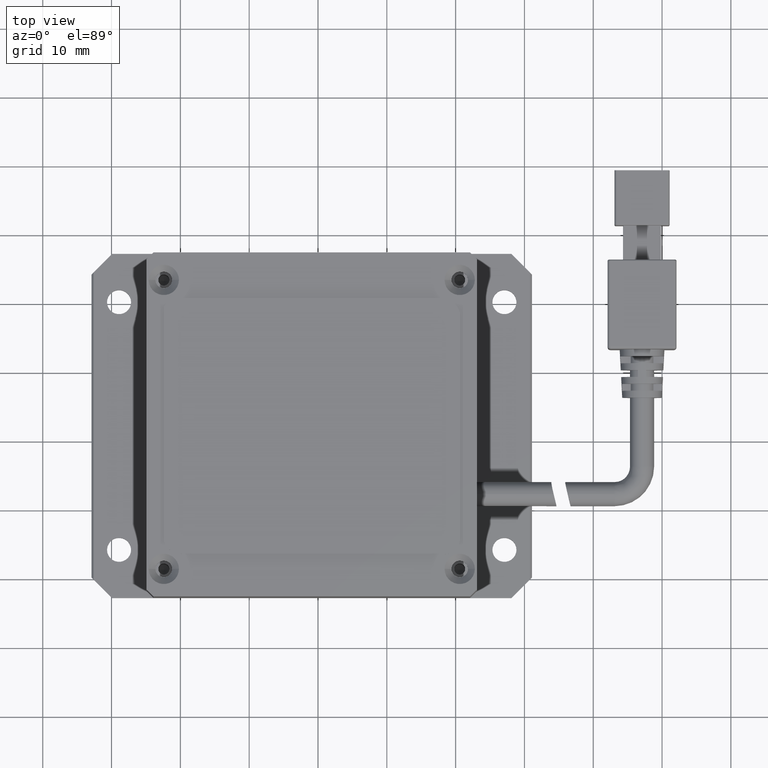
[diagram: clean part render]
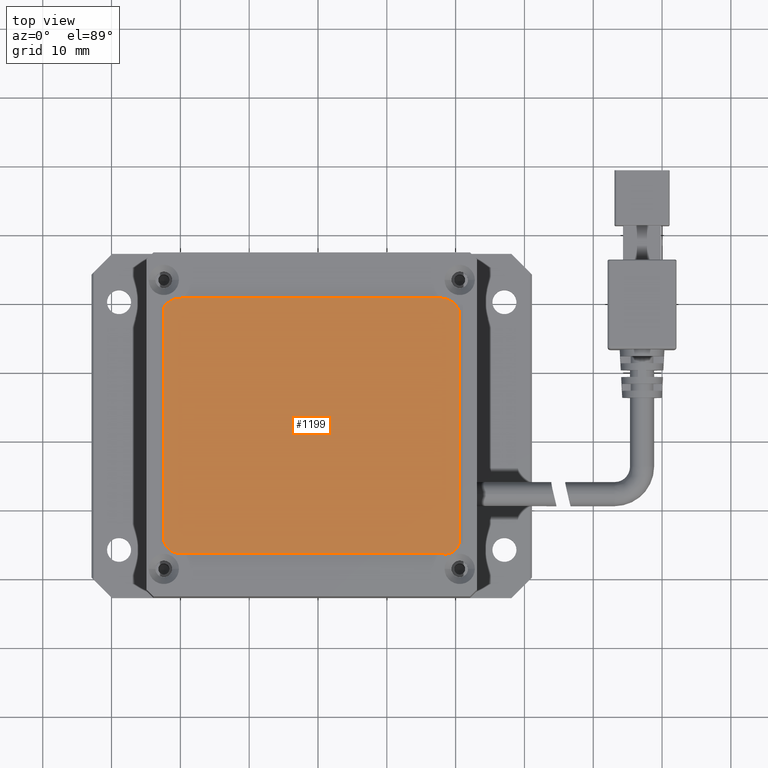
[diagram: same view with one face highlighted and labeled with its STEP entity id]
A machine part, top view. The second image highlights one B-rep face of the part: STEP entity #1199.
In plain terms, the highlighted planar face has unit normal (-0, 0, -1).
Its self-contained STEP definition (entity closure, byte-faithful):
#151 = ORIENTED_EDGE ( 'NONE', *, *, #2411, .T. ) ;
#592 = DIRECTION ( 'NONE',  ( 0.0000000000000000000, 1.000000000000000000, 0.0000000000000000000 ) ) ;
#1114 = VECTOR ( 'NONE', #5251, 1000.000000000000000 ) ;
#1199 = ADVANCED_FACE ( 'NONE', ( #19870 ), #18175, .F. ) ;
#1246 = CARTESIAN_POINT ( 'NONE',  ( -19.88397062032537500, 20.64631015631383800, 13.09999999998369100 ) ) ;
#1491 = VERTEX_POINT ( 'NONE', #4927 ) ;
#1535 = VERTEX_POINT ( 'NONE', #16040 ) ;
#1607 = VERTEX_POINT ( 'NONE', #16639 ) ;
#1836 = ORIENTED_EDGE ( 'NONE', *, *, #14850, .T. ) ;
#2411 = EDGE_CURVE ( 'NONE', #1491, #4511, #7605, .T. ) ;
#2452 = CARTESIAN_POINT ( 'NONE',  ( 20.59316533027872600, -14.67035368407021800, 13.09999999998369100 ) ) ;
#2702 = AXIS2_PLACEMENT_3D ( 'NONE', #5069, #16121, #6660 ) ;
#2831 = LINE ( 'NONE', #10070, #11757 ) ;
#2909 = DIRECTION ( 'NONE',  ( -1.000000000000000000, -0.0000000000000000000, -0.0000000000000000000 ) ) ;
#3595 = CARTESIAN_POINT ( 'NONE',  ( -19.88397062032537500, -13.87193816601501000, 13.09999999998369100 ) ) ;
#3610 = AXIS2_PLACEMENT_3D ( 'NONE', #4335, #15413, #5922 ) ;
#3613 = EDGE_CURVE ( 'NONE', #15785, #4693, #15423, .T. ) ;
#4335 = CARTESIAN_POINT ( 'NONE',  ( 18.45703195761590700, -14.40474704532020500, 13.09999999998369100 ) ) ;
#4497 = DIRECTION ( 'NONE',  ( 0.0000000000000000000, 0.0000000000000000000, 1.000000000000000000 ) ) ;
#4511 = VERTEX_POINT ( 'NONE', #2452 ) ;
#4693 = VERTEX_POINT ( 'NONE', #13863 ) ;
#4927 = CARTESIAN_POINT ( 'NONE',  ( 18.00368343727945900, -16.50904925542707200, 13.09999999998369100 ) ) ;
#5069 = CARTESIAN_POINT ( 'NONE',  ( -19.94927597337307600, 17.62137133524542800, 13.09999999998369100 ) ) ;
#5196 = DIRECTION ( 'NONE',  ( -1.000000000000000000, 0.0000000000000000000, 0.0000000000000000000 ) ) ;
#5251 = DIRECTION ( 'NONE',  ( -0.0000000000000000000, -1.000000000000000000, -0.0000000000000000000 ) ) ;
#5606 = CARTESIAN_POINT ( 'NONE',  ( -19.94927597337307600, 17.62137133524542800, 13.09999999998369100 ) ) ;
#5779 = EDGE_CURVE ( 'NONE', #6133, #1607, #16197, .T. ) ;
#5922 = DIRECTION ( 'NONE',  ( 1.000000000000000000, 0.0000000000000000000, 0.0000000000000000000 ) ) ;
#6133 = VERTEX_POINT ( 'NONE', #8478 ) ;
#6660 = DIRECTION ( 'NONE',  ( -1.000000000000000000, 0.0000000000000000000, 0.0000000000000000000 ) ) ;
#6936 = DIRECTION ( 'NONE',  ( 1.000000000000000000, 0.0000000000000000000, 0.0000000000000000000 ) ) ;
#6982 = LINE ( 'NONE', #1246, #19093 ) ;
#7019 = AXIS2_PLACEMENT_3D ( 'NONE', #13960, #4497, #15573 ) ;
#7100 = VECTOR ( 'NONE', #6936, 1000.000000000000000 ) ;
#7171 = EDGE_LOOP ( 'NONE', ( #13067, #1836, #17653, #9220, #151, #16431, #14018, #20126 ) ) ;
#7221 = DIRECTION ( 'NONE',  ( -1.000000000000000000, 0.0000000000000000000, 0.0000000000000000000 ) ) ;
#7605 = CIRCLE ( 'NONE', #3610, 2.152582791056338400 ) ;
#7622 = AXIS2_PLACEMENT_3D ( 'NONE', #5606, #16664, #7221 ) ;
#8478 = CARTESIAN_POINT ( 'NONE',  ( 20.59316533027872600, 18.61088704111909600, 13.09999999998369100 ) ) ;
#9220 = ORIENTED_EDGE ( 'NONE', *, *, #18968, .T. ) ;
#9563 = LINE ( 'NONE', #14699, #1114 ) ;
#10070 = CARTESIAN_POINT ( 'NONE',  ( 20.59316533027872600, -14.67035368407021800, 13.09999999998369100 ) ) ;
#11757 = VECTOR ( 'NONE', #592, 1000.000000000000000 ) ;
#12452 = VERTEX_POINT ( 'NONE', #13345 ) ;
#13067 = ORIENTED_EDGE ( 'NONE', *, *, #14319, .T. ) ;
#13195 = CARTESIAN_POINT ( 'NONE',  ( -19.66498328437758800, -16.50904925542707600, 13.09999999998369100 ) ) ;
#13345 = CARTESIAN_POINT ( 'NONE',  ( -22.40683466972126700, 19.38628632309804800, 13.09999999998369100 ) ) ;
#13863 = CARTESIAN_POINT ( 'NONE',  ( -19.66498328437758800, -16.50904925542707600, 13.09999999998369100 ) ) ;
#13960 = CARTESIAN_POINT ( 'NONE',  ( 17.88267781039737200, 17.82747425779683000, 13.09999999998369100 ) ) ;
#14018 = ORIENTED_EDGE ( 'NONE', *, *, #5779, .T. ) ;
#14319 = EDGE_CURVE ( 'NONE', #1535, #12452, #19166, .T. ) ;
#14641 = DIRECTION ( 'NONE',  ( 0.0000000000000000000, 0.0000000000000000000, 1.000000000000000000 ) ) ;
#14699 = CARTESIAN_POINT ( 'NONE',  ( -22.40683466972126700, -14.67035368407021800, 13.09999999998369100 ) ) ;
#14850 = EDGE_CURVE ( 'NONE', #12452, #15785, #9563, .T. ) ;
#14902 = EDGE_CURVE ( 'NONE', #4511, #6133, #2831, .T. ) ;
#15413 = DIRECTION ( 'NONE',  ( 0.0000000000000000000, 0.0000000000000000000, 1.000000000000000000 ) ) ;
#15423 = CIRCLE ( 'NONE', #18869, 2.646187890382241600 ) ;
#15573 = DIRECTION ( 'NONE',  ( -1.000000000000000000, 0.0000000000000000000, 0.0000000000000000000 ) ) ;
#15739 = EDGE_CURVE ( 'NONE', #1607, #1535, #6982, .T. ) ;
#15785 = VERTEX_POINT ( 'NONE', #17158 ) ;
#16040 = CARTESIAN_POINT ( 'NONE',  ( -19.88397062032537500, 20.64631015631383800, 13.09999999998369100 ) ) ;
#16121 = DIRECTION ( 'NONE',  ( 0.0000000000000000000, 0.0000000000000000000, 1.000000000000000000 ) ) ;
#16197 = CIRCLE ( 'NONE', #7019, 2.821431938662586300 ) ;
#16431 = ORIENTED_EDGE ( 'NONE', *, *, #14902, .T. ) ;
#16639 = CARTESIAN_POINT ( 'NONE',  ( 18.00368343727945600, 20.64631015631383800, 13.09999999998369100 ) ) ;
#16664 = DIRECTION ( 'NONE',  ( -0.0000000000000000000, 0.0000000000000000000, -1.000000000000000000 ) ) ;
#17158 = CARTESIAN_POINT ( 'NONE',  ( -22.40683466972126700, -14.67035368407022000, 13.09999999998369100 ) ) ;
#17653 = ORIENTED_EDGE ( 'NONE', *, *, #3613, .T. ) ;
#18175 = PLANE ( 'NONE',  #7622 ) ;
#18869 = AXIS2_PLACEMENT_3D ( 'NONE', #3595, #14641, #5196 ) ;
#18968 = EDGE_CURVE ( 'NONE', #4693, #1491, #19699, .T. ) ;
#19093 = VECTOR ( 'NONE', #2909, 1000.000000000000000 ) ;
#19166 = CIRCLE ( 'NONE', #2702, 3.025643677028646600 ) ;
#19699 = LINE ( 'NONE', #13195, #7100 ) ;
#19870 = FACE_OUTER_BOUND ( 'NONE', #7171, .T. ) ;
#20126 = ORIENTED_EDGE ( 'NONE', *, *, #15739, .T. ) ;